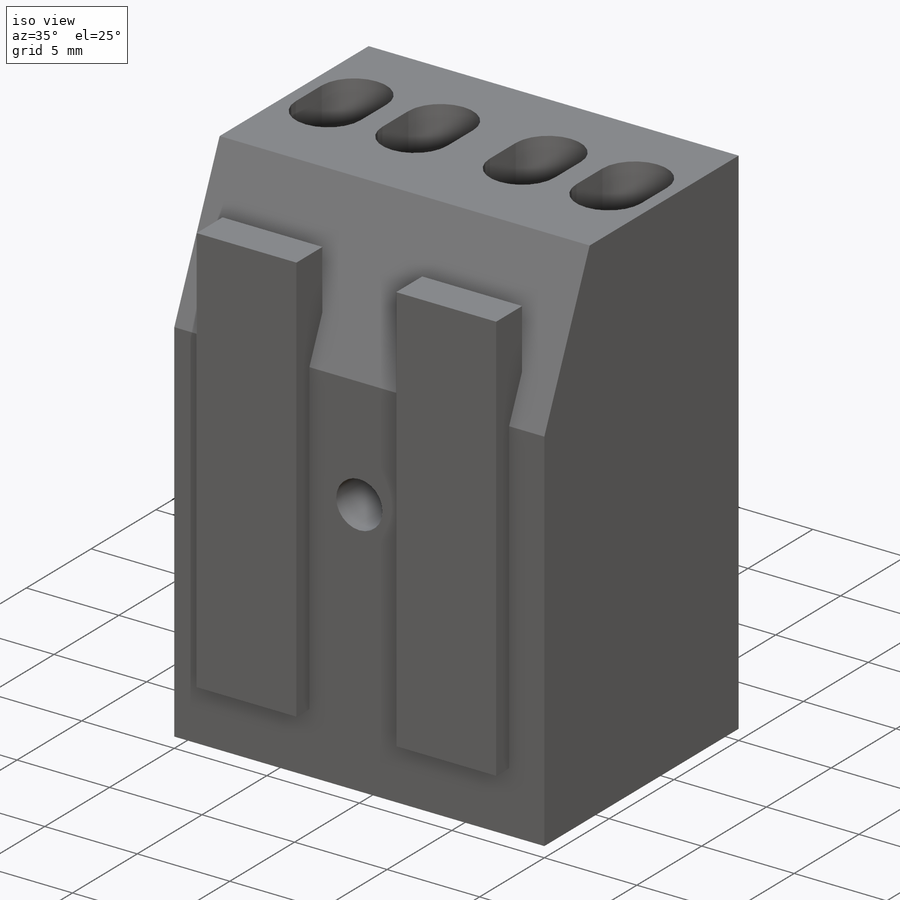
[diagram: iso view]
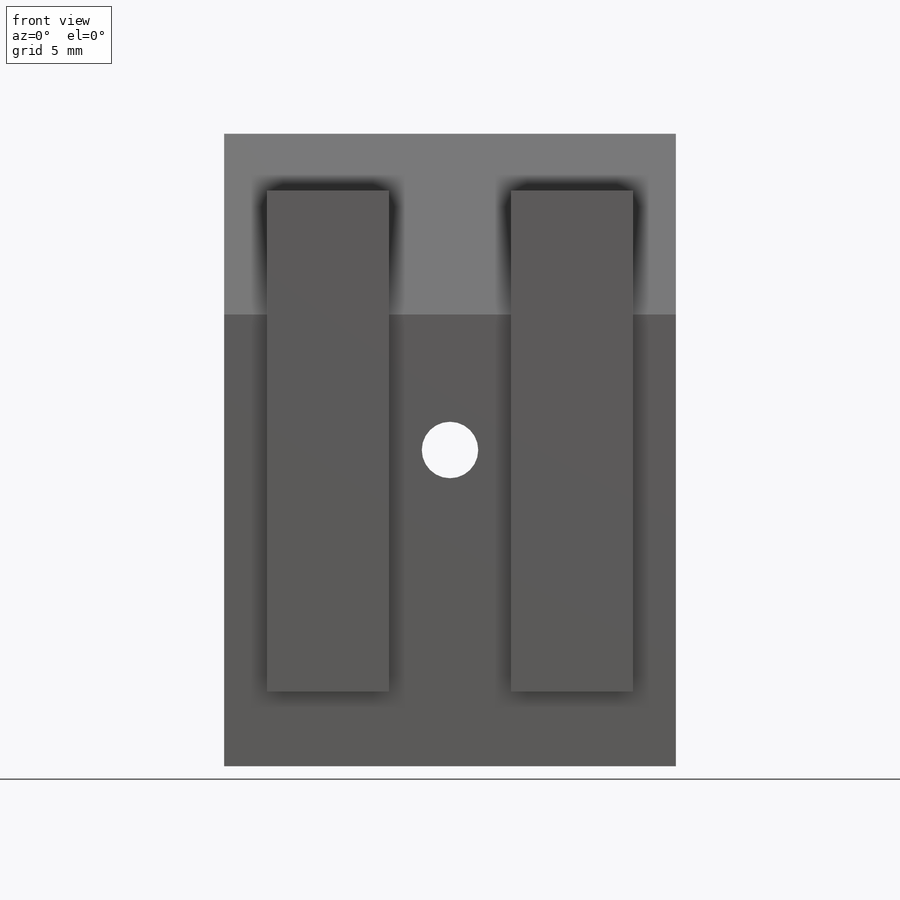
[diagram: front view]
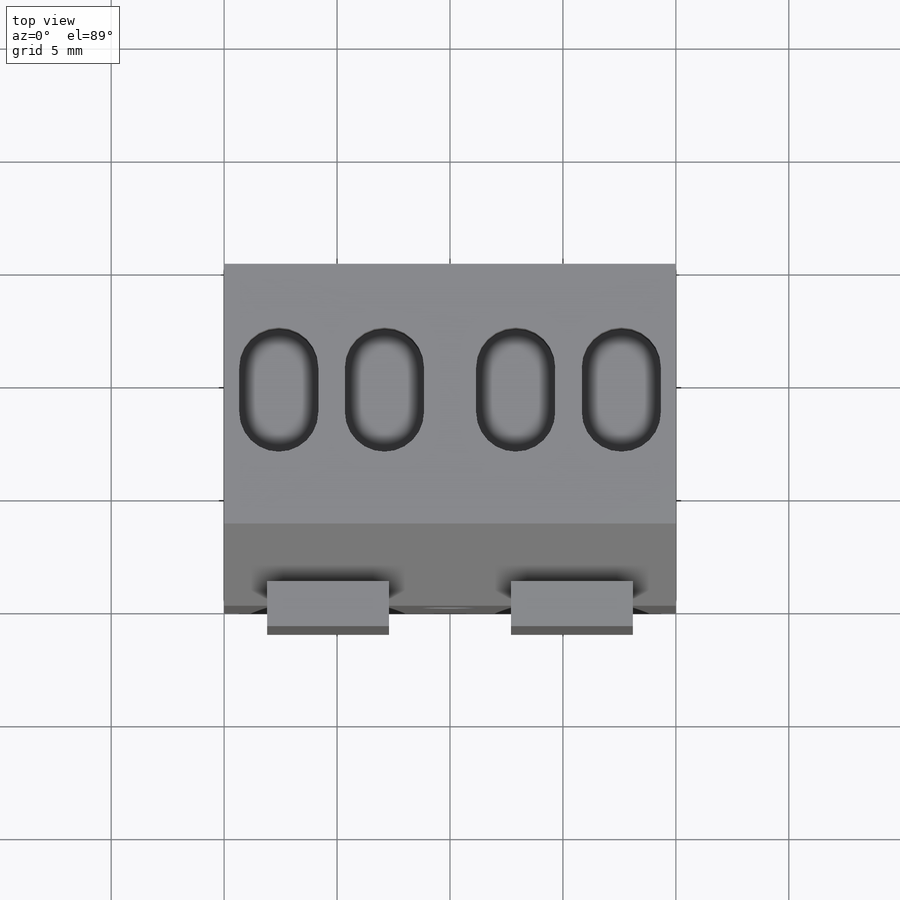
[diagram: top view]
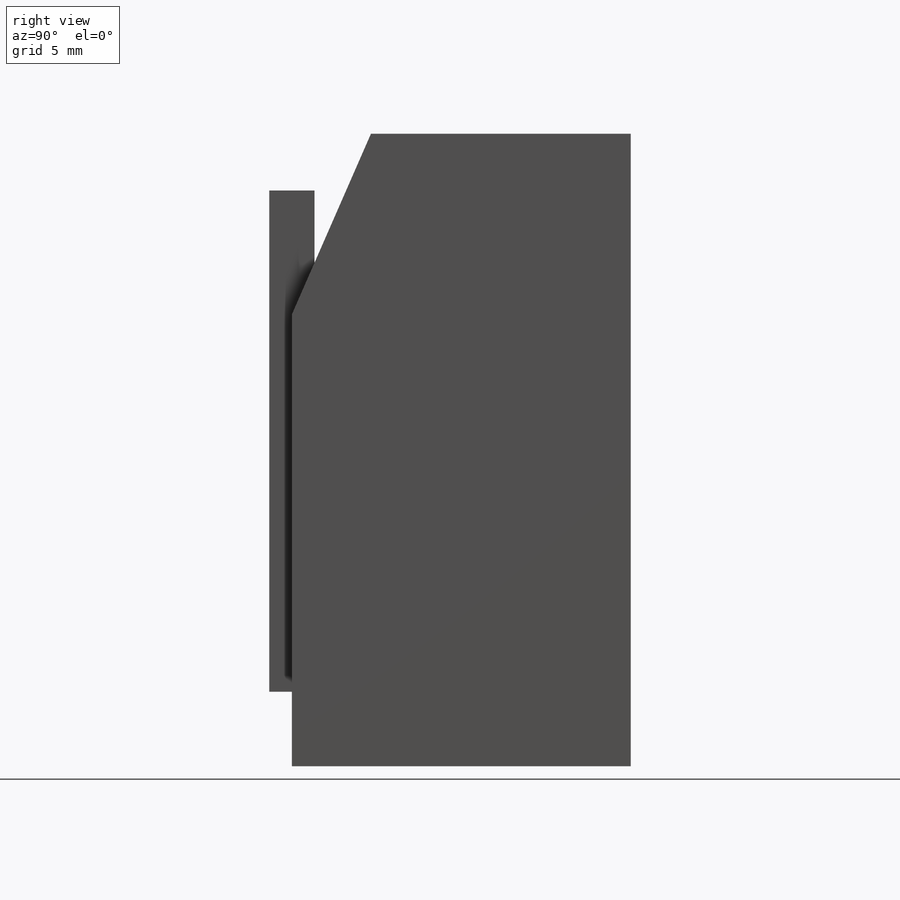
[diagram: right view]
SOLIDWORKS PART (.sldprt)
format: sldprt  version: not decoded by parser v0  size: 195,584 bytes
history: native  units: mm
features: sketch x5, cut_extrude x3, extrude x2, material x1, mirror x1 (+16 scaffold rows collapsed)
feature tree (28):
  scaffold x16  (default folders/planes/origin — collapsed)
  material  "Material <not specified>"
  sketch  "Sketch1"  dims[D1=28.0mm D2=20.0mm]
  extrude  "Boss-Extrude1"  Depth=15mm
  sketch  "Sketch2"  dims[D1=3.5mm D2=8.0mm]
  cut_extrude  "Cut-Extrude1"  [1 undecoded]
  sketch  "Sketch3"  dims[D1=2.0mm D2=3.5mm]
  cut_extrude  "Cut-Extrude2"  Depth=5mm
  sketch  "Sketch4"
  extrude  "Boss-Extrude2"  Depth=2mm
  mirror  "Mirror1"
  sketch  "Sketch5"  dims[D1=2.5mm]
  cut_extrude  "Cut-Extrude3"  [1 undecoded]
decode coverage: 7 of 11 modeling features carry decoded parameters
note: 2 parameter values undecoded
note: suppression state not decoded; provenance and decode notes live in map.json
